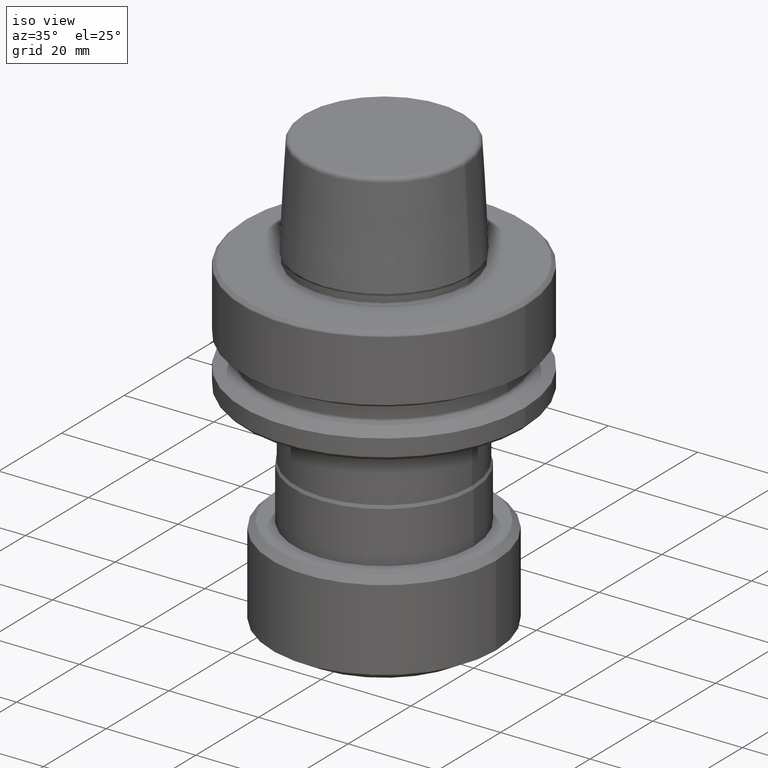
[diagram: clean part render]
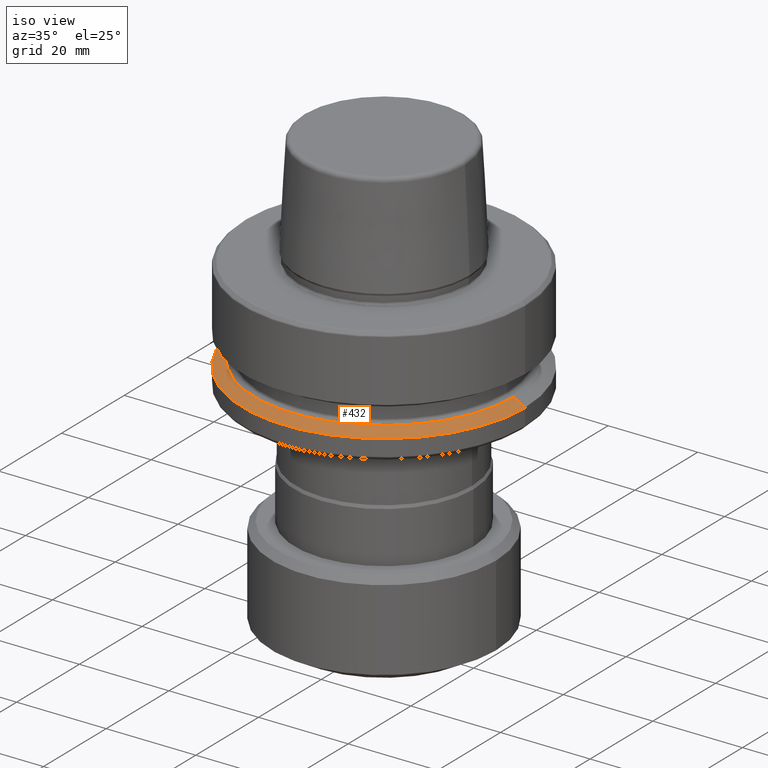
[diagram: same view with one face highlighted and labeled with its STEP entity id]
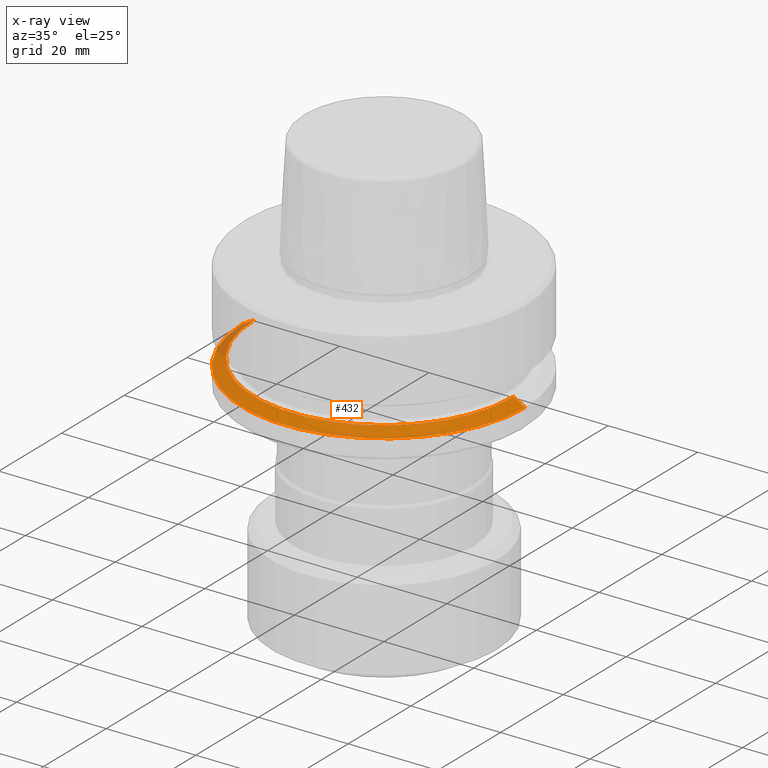
[diagram: x-ray of the same camera — body ghosted, the highlighted face saturated]
A machine part, iso view. The second image highlights one B-rep face of the part: STEP entity #432.
The next image is the same camera in x-ray: the body ghosted, the highlighted face saturated — about 5% of this face is hidden behind the body in this view.
In plain terms, the highlighted conical surface has half-angle 60 deg.
Its self-contained STEP definition (entity closure, byte-faithful):
#23 = DIRECTION ( 'NONE',  ( -1.000000000000000000, 0.0000000000000000000, 0.0000000000000000000 ) ) ;
#38 = CONICAL_SURFACE ( 'NONE', #522, 28.94089653438085100, 1.047197551196598300 ) ;
#108 = VECTOR ( 'NONE', #1321, 1000.000000000000000 ) ;
#139 = CARTESIAN_POINT ( 'NONE',  ( 0.0000000000000000000, 0.0000000000000000000, -24.89999999999999900 ) ) ;
#164 = EDGE_CURVE ( 'NONE', #596, #1408, #525, .T. ) ;
#187 = CARTESIAN_POINT ( 'NONE',  ( 0.0000000000000000000, 0.0000000000000000000, -24.89999999999999900 ) ) ;
#246 = EDGE_CURVE ( 'NONE', #557, #596, #766, .T. ) ;
#266 = DIRECTION ( 'NONE',  ( 0.0000000000000000000, 0.0000000000000000000, -1.000000000000000000 ) ) ;
#295 = ORIENTED_EDGE ( 'NONE', *, *, #246, .T. ) ;
#310 = DIRECTION ( 'NONE',  ( 1.000000000000000000, 0.0000000000000000000, 0.0000000000000000000 ) ) ;
#432 = ADVANCED_FACE ( 'NONE', ( #1045 ), #38, .T. ) ;
#445 = CARTESIAN_POINT ( 'NONE',  ( 28.94089653438085100, 3.700937523921292900E-015, -24.89999999999999900 ) ) ;
#487 = AXIS2_PLACEMENT_3D ( 'NONE', #187, #1041, #310 ) ;
#522 = AXIS2_PLACEMENT_3D ( 'NONE', #139, #266, #23 ) ;
#525 = CIRCLE ( 'NONE', #578, 31.50000000000000000 ) ;
#538 = ORIENTED_EDGE ( 'NONE', *, *, #1188, .F. ) ;
#557 = VERTEX_POINT ( 'NONE', #1382 ) ;
#578 = AXIS2_PLACEMENT_3D ( 'NONE', #1316, #590, #1434 ) ;
#590 = DIRECTION ( 'NONE',  ( -0.0000000000000000000, -0.0000000000000000000, 1.000000000000000000 ) ) ;
#596 = VERTEX_POINT ( 'NONE', #1522 ) ;
#620 = CARTESIAN_POINT ( 'NONE',  ( 28.94089653438085100, 3.544237630528423800E-015, -24.89999999999999900 ) ) ;
#660 = EDGE_CURVE ( 'NONE', #557, #688, #1584, .T. ) ;
#688 = VERTEX_POINT ( 'NONE', #445 ) ;
#714 = CARTESIAN_POINT ( 'NONE',  ( -28.94089653438085100, 0.0000000000000000000, -24.89999999999999900 ) ) ;
#739 = DIRECTION ( 'NONE',  ( 0.8660254037844389300, 1.060575238724907300E-016, -0.4999999999999995000 ) ) ;
#766 = LINE ( 'NONE', #714, #108 ) ;
#909 = CARTESIAN_POINT ( 'NONE',  ( 31.50000000000000000, 0.0000000000000000000, -26.37749907475931700 ) ) ;
#951 = EDGE_LOOP ( 'NONE', ( #538, #1165, #295, #1315 ) ) ;
#1041 = DIRECTION ( 'NONE',  ( -0.0000000000000000000, -0.0000000000000000000, 1.000000000000000000 ) ) ;
#1045 = FACE_OUTER_BOUND ( 'NONE', #951, .T. ) ;
#1129 = VECTOR ( 'NONE', #739, 1000.000000000000000 ) ;
#1163 = LINE ( 'NONE', #620, #1129 ) ;
#1165 = ORIENTED_EDGE ( 'NONE', *, *, #660, .F. ) ;
#1188 = EDGE_CURVE ( 'NONE', #688, #1408, #1163, .T. ) ;
#1315 = ORIENTED_EDGE ( 'NONE', *, *, #164, .T. ) ;
#1316 = CARTESIAN_POINT ( 'NONE',  ( 0.0000000000000000000, 0.0000000000000000000, -26.37749907475931700 ) ) ;
#1321 = DIRECTION ( 'NONE',  ( -0.8660254037844389300, 0.0000000000000000000, -0.4999999999999995000 ) ) ;
#1382 = CARTESIAN_POINT ( 'NONE',  ( -28.94089653438085100, 0.0000000000000000000, -24.89999999999999900 ) ) ;
#1408 = VERTEX_POINT ( 'NONE', #909 ) ;
#1434 = DIRECTION ( 'NONE',  ( 1.000000000000000000, 0.0000000000000000000, 0.0000000000000000000 ) ) ;
#1522 = CARTESIAN_POINT ( 'NONE',  ( -31.50000000000000000, 3.857637417314162700E-015, -26.37749907475931700 ) ) ;
#1584 = CIRCLE ( 'NONE', #487, 28.94089653438085100 ) ;